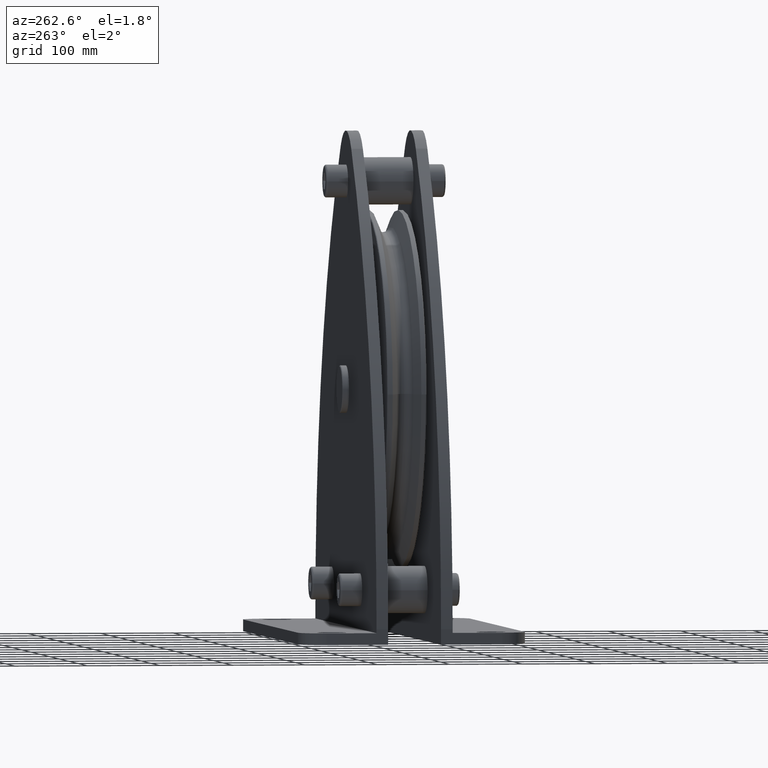
[diagram: clean part render]
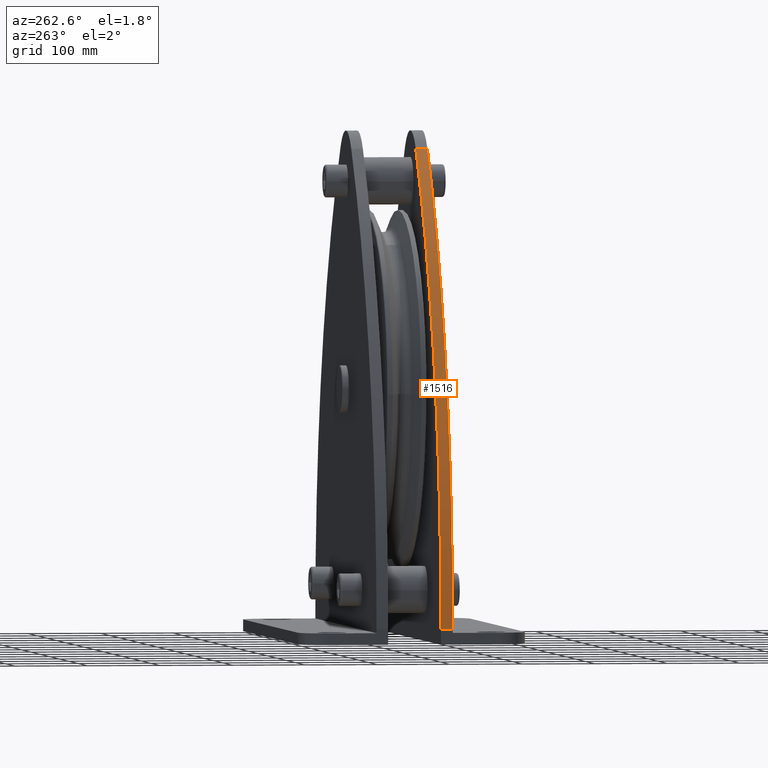
[diagram: same view with one face highlighted and labeled with its STEP entity id]
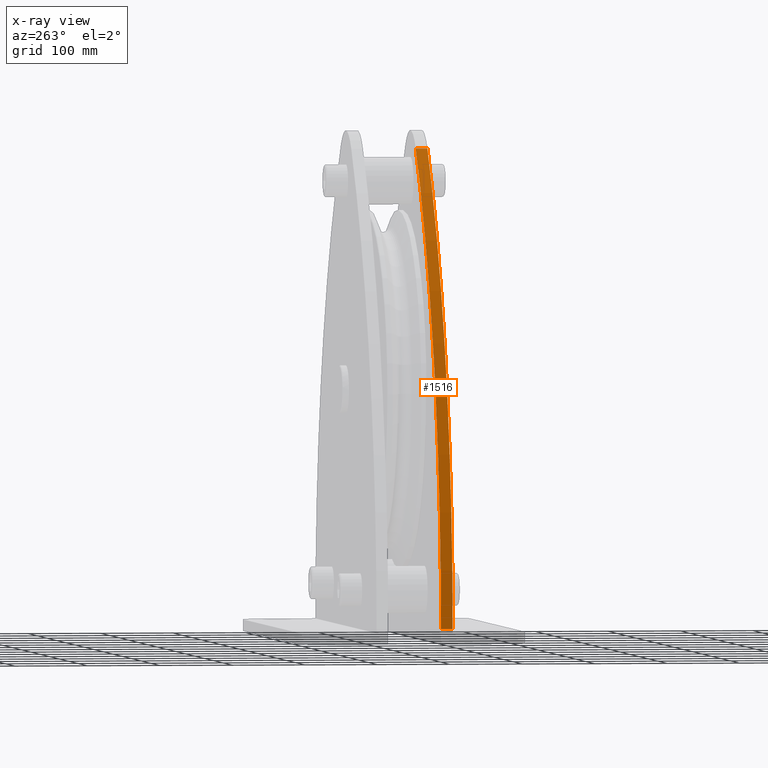
[diagram: x-ray of the same camera — body ghosted, the highlighted face saturated]
A machine part, auxiliary view. The second image highlights one B-rep face of the part: STEP entity #1516.
The next image is the same camera in x-ray: the body ghosted, the highlighted face saturated — about 0% of this face is hidden behind the body in this view.
In plain terms, the highlighted cylindrical surface (partial cylindrical patch) has radius 920 mm, axis along (0, -1, 0).
Its self-contained STEP definition (entity closure, byte-faithful):
#1516=ADVANCED_FACE('',(#3295),#3296,.T.);
#3295=FACE_OUTER_BOUND('',#5327,.T.);
#3296=CYLINDRICAL_SURFACE('',#5328,920.000000013603);
#5327=EDGE_LOOP('',(#10113,#10114,#10115,#10116));
#5328=AXIS2_PLACEMENT_3D('',#10117,#10118,#10119);
#10113=ORIENTED_EDGE('',*,*,#12862,.T.);
#10114=ORIENTED_EDGE('',*,*,#13869,.F.);
#10115=ORIENTED_EDGE('',*,*,#13863,.T.);
#10116=ORIENTED_EDGE('',*,*,#13871,.T.);
#10117=CARTESIAN_POINT('',(595.000000013603,-36.5,-318.747549016001));
#10118=DIRECTION('',(0.0,-1.0,0.0));
#10119=DIRECTION('',(-0.708333333341822,0.0,0.70587809774554));
#12862=EDGE_CURVE('',#15829,#15827,#15830,.T.);
#13863=EDGE_CURVE('',#17216,#17214,#17217,.T.);
#13869=EDGE_CURVE('',#17216,#15827,#17223,.T.);
#13871=EDGE_CURVE('',#17214,#15829,#17225,.T.);
#15827=VERTEX_POINT('',#22865);
#15829=VERTEX_POINT('',#22867);
#15830=CIRCLE('',#22868,920.000000013603);
#17214=VERTEX_POINT('',#24773);
#17216=VERTEX_POINT('',#24776);
#17217=CIRCLE('',#24777,920.000000013603);
#17223=LINE('',#24785,#24786);
#17225=LINE('',#24788,#24789);
#22865=CARTESIAN_POINT('',(-56.6666666699818,-52.5,330.660300919998));
#22867=CARTESIAN_POINT('',(-325.0,-52.5,-318.747549009577));
#22868=AXIS2_PLACEMENT_3D('',#27983,#27984,#27985);
#24773=CARTESIAN_POINT('',(-325.0,-36.5,-318.747549009577));
#24776=CARTESIAN_POINT('',(-56.6666666699818,-36.5,330.660300919998));
#24777=AXIS2_PLACEMENT_3D('',#28997,#28998,#28999);
#24785=CARTESIAN_POINT('',(-56.6666666699818,-36.5,330.660300919998));
#24786=VECTOR('',#29005,1.0);
#24788=CARTESIAN_POINT('',(-325.0,-36.5,-318.747549009577));
#24789=VECTOR('',#29006,1.0);
#27983=CARTESIAN_POINT('',(595.000000013603,-52.5,-318.747549016001));
#27984=DIRECTION('',(0.0,1.0,-0.0));
#27985=DIRECTION('',(-0.708333333341822,0.0,0.70587809774554));
#28997=CARTESIAN_POINT('',(595.000000013603,-36.5,-318.747549016001));
#28998=DIRECTION('',(0.0,-1.0,0.0));
#28999=DIRECTION('',(-0.708333333341822,0.0,0.70587809774554));
#29005=DIRECTION('',(0.0,-1.0,0.0));
#29006=DIRECTION('',(0.0,-1.0,0.0));